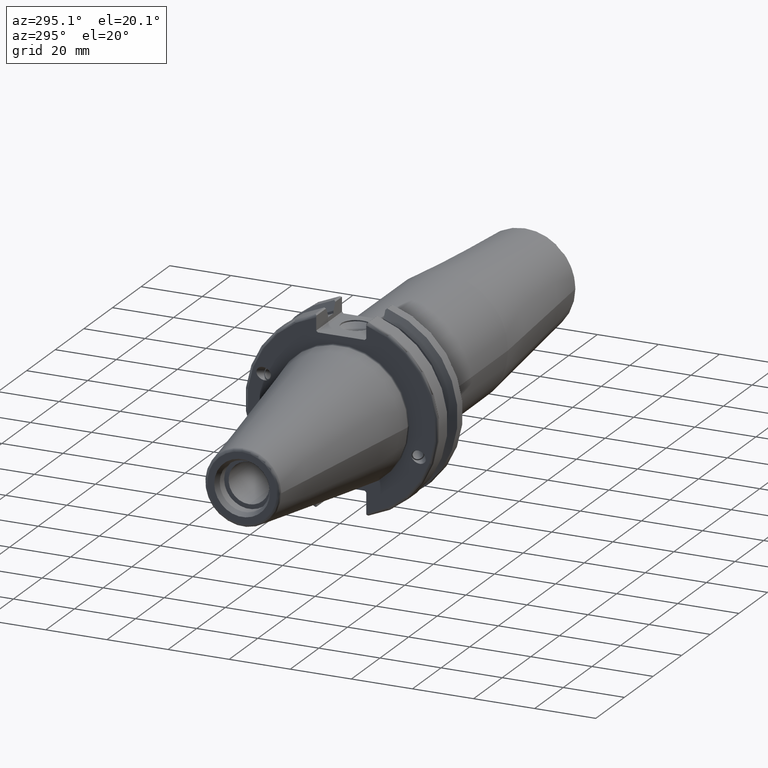
[diagram: clean part render]
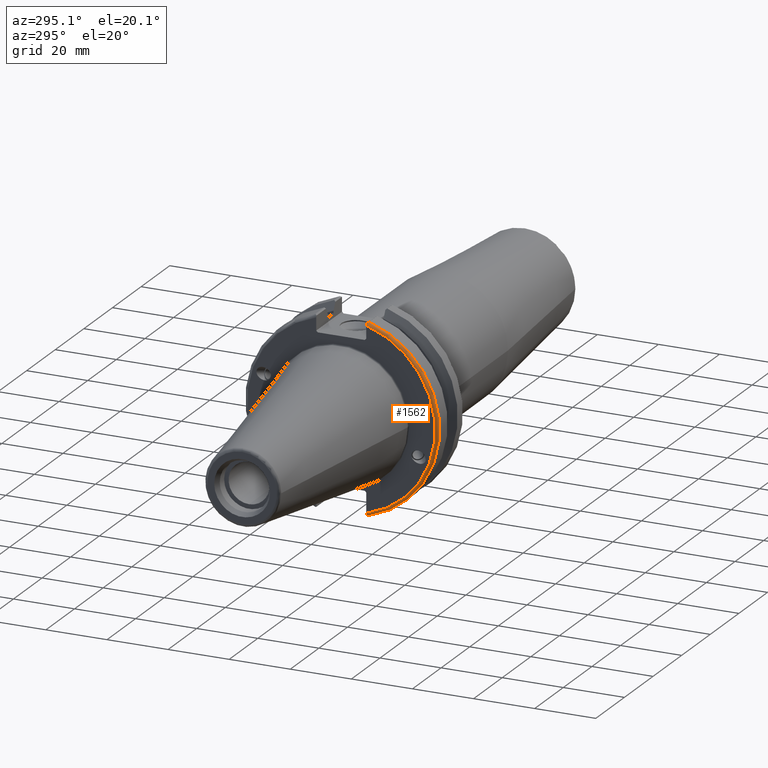
[diagram: same view with one face highlighted and labeled with its STEP entity id]
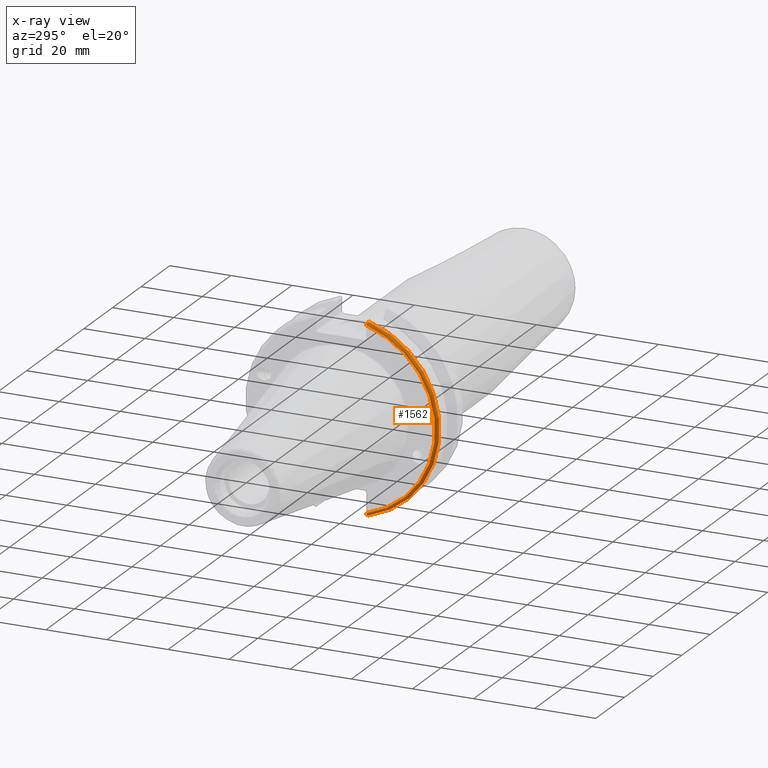
[diagram: x-ray of the same camera — body ghosted, the highlighted face saturated]
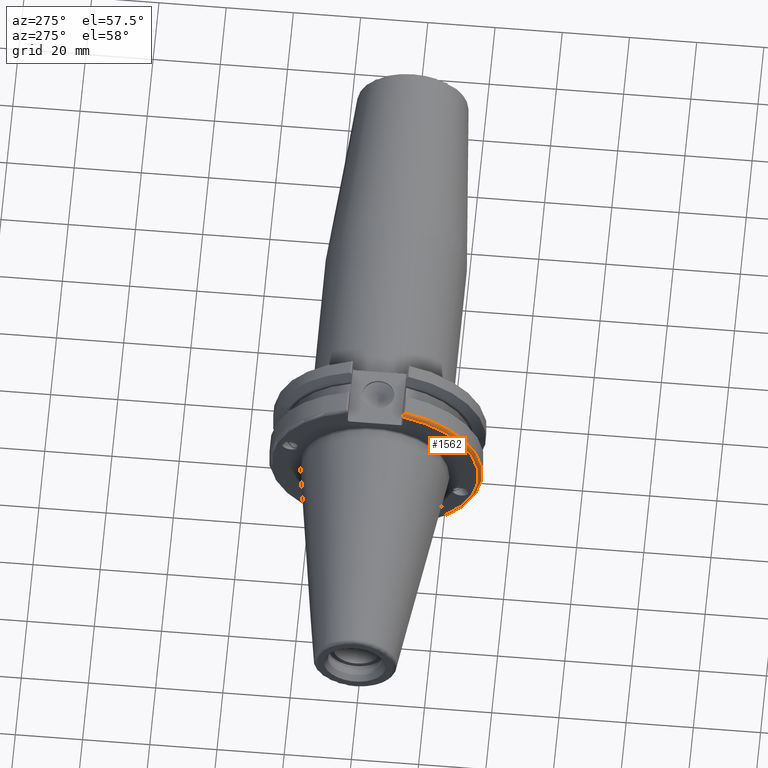
[diagram: same view with one face highlighted and labeled with its STEP entity id]
A machine part, auxiliary view. The second image highlights one B-rep face of the part: STEP entity #1562.
The next image is the same camera in x-ray: the body ghosted, the highlighted face saturated — about 0% of this face is hidden behind the body in this view.
A second angle (auxiliary view) of the same face is appended — the face is thin or edge-on in the first view.
In plain terms, the highlighted toroidal blend (fillet) surface has major radius 30.75 mm and minor (blend) radius 1 mm.
Its self-contained STEP definition (entity closure, byte-faithful):
#60=B_SPLINE_CURVE_WITH_KNOTS('',3,(#2920,#2921,#2922,#2923,#2924,#2925),
 .UNSPECIFIED.,.F.,.F.,(4,2,4),(0.0977210450333169,0.111963554372601,0.150804064902975),
 .UNSPECIFIED.);
#61=B_SPLINE_CURVE_WITH_KNOTS('',3,(#2946,#2947,#2948,#2949,#2950,#2951),
 .UNSPECIFIED.,.F.,.F.,(4,2,4),(0.452741510188268,0.491582020718643,0.505824530057928),
 .UNSPECIFIED.);
#62=B_SPLINE_CURVE_WITH_KNOTS('',3,(#2955,#2956,#2957,#2958,#2959,#2960,
#2961,#2962),.UNSPECIFIED.,.F.,.F.,(4,2,2,4),(-0.104180282751877,-0.0729784742461442,
-0.0343524753874976,0.),.UNSPECIFIED.);
#63=B_SPLINE_CURVE_WITH_KNOTS('',3,(#2965,#2966,#2967,#2968,#2969,#2970,
#2971,#2972),.UNSPECIFIED.,.F.,.F.,(4,2,2,4),(0.,0.0343524753874981,0.0729784742461435,
0.104180282751876),.UNSPECIFIED.);
#126=TOROIDAL_SURFACE('',#1746,30.75,1.);
#229=FACE_OUTER_BOUND('',#331,.T.);
#331=EDGE_LOOP('',(#1328,#1329,#1330,#1331,#1332,#1333));
#602=CIRCLE('',#1733,30.75);
#608=CIRCLE('',#1747,31.75);
#724=VERTEX_POINT('',#2780);
#725=VERTEX_POINT('',#2781);
#759=VERTEX_POINT('',#2919);
#765=VERTEX_POINT('',#2944);
#766=VERTEX_POINT('',#2954);
#767=VERTEX_POINT('',#2963);
#918=EDGE_CURVE('',#724,#725,#602,.T.);
#961=EDGE_CURVE('',#759,#724,#60,.T.);
#971=EDGE_CURVE('',#725,#765,#61,.T.);
#973=EDGE_CURVE('',#765,#766,#62,.T.);
#974=EDGE_CURVE('',#766,#767,#608,.T.);
#975=EDGE_CURVE('',#767,#759,#63,.T.);
#1328=ORIENTED_EDGE('',*,*,#973,.T.);
#1329=ORIENTED_EDGE('',*,*,#974,.T.);
#1330=ORIENTED_EDGE('',*,*,#975,.T.);
#1331=ORIENTED_EDGE('',*,*,#961,.T.);
#1332=ORIENTED_EDGE('',*,*,#918,.T.);
#1333=ORIENTED_EDGE('',*,*,#971,.T.);
#1562=ADVANCED_FACE('',(#229),#126,.T.);
#1733=AXIS2_PLACEMENT_3D('',#2782,#2064,#2065);
#1746=AXIS2_PLACEMENT_3D('',#2953,#2125,#2126);
#1747=AXIS2_PLACEMENT_3D('',#2964,#2127,#2128);
#2064=DIRECTION('center_axis',(1.,0.,0.));
#2065=DIRECTION('ref_axis',(0.,-1.,1.60812264967664E-16));
#2125=DIRECTION('center_axis',(1.,0.,0.));
#2126=DIRECTION('ref_axis',(0.,0.,-1.));
#2127=DIRECTION('center_axis',(-1.,0.,0.));
#2128=DIRECTION('ref_axis',(0.,-1.,1.60812264967664E-16));
#2780=CARTESIAN_POINT('',(0.999999999999999,-8.18999999999999,29.6392712461019));
#2781=CARTESIAN_POINT('',(0.999999999999999,-8.19,-29.6392712461019));
#2782=CARTESIAN_POINT('Origin',(0.999999999999999,0.,0.));
#2919=CARTESIAN_POINT('',(1.14412772509028,-8.19,30.1755016258903));
#2920=CARTESIAN_POINT('Ctrl Pts',(1.14412772509028,-8.19,30.1755016258903));
#2921=CARTESIAN_POINT('Ctrl Pts',(1.11818362718666,-8.19,30.131014531546));
#2922=CARTESIAN_POINT('Ctrl Pts',(1.09603565282437,-8.19,30.0852355256475));
#2923=CARTESIAN_POINT('Ctrl Pts',(1.02951443291695,-8.19,29.9212724384851));
#2924=CARTESIAN_POINT('Ctrl Pts',(0.999999999999999,-8.19,29.7687396145364));
#2925=CARTESIAN_POINT('Ctrl Pts',(0.999999999999999,-8.19,29.6392712461019));
#2944=CARTESIAN_POINT('',(1.14412772509028,-8.19,-30.1755016258903));
#2946=CARTESIAN_POINT('Ctrl Pts',(0.999999999999999,-8.19,-29.6392712461019));
#2947=CARTESIAN_POINT('Ctrl Pts',(0.999999999999999,-8.19,-29.7687396145364));
#2948=CARTESIAN_POINT('Ctrl Pts',(1.02951443291695,-8.19,-29.9212724384851));
#2949=CARTESIAN_POINT('Ctrl Pts',(1.09603565282437,-8.19,-30.0852355256475));
#2950=CARTESIAN_POINT('Ctrl Pts',(1.11818362718666,-8.19,-30.131014531546));
#2951=CARTESIAN_POINT('Ctrl Pts',(1.14412772509028,-8.19,-30.1755016258903));
#2953=CARTESIAN_POINT('Origin',(2.,0.,0.));
#2954=CARTESIAN_POINT('',(2.,-8.67204822802685,-30.5427254764662));
#2955=CARTESIAN_POINT('Ctrl Pts',(1.14412772509028,-8.19,-30.1755016258903));
#2956=CARTESIAN_POINT('Ctrl Pts',(1.19255369570113,-8.2703682833078,-30.2367261024977));
#2957=CARTESIAN_POINT('Ctrl Pts',(1.25732973376814,-8.34909446036477,-30.2966996242308));
#2958=CARTESIAN_POINT('Ctrl Pts',(1.41032758094931,-8.48862804755884,-30.4029961692546));
#2959=CARTESIAN_POINT('Ctrl Pts',(1.53155857052286,-8.56482138642532,-30.4610401774263));
#2960=CARTESIAN_POINT('Ctrl Pts',(1.75168295662254,-8.6471881193939,-30.5237870709558));
#2961=CARTESIAN_POINT('Ctrl Pts',(1.88549174870834,-8.67204822802686,-30.5427254764662));
#2962=CARTESIAN_POINT('Ctrl Pts',(2.,-8.67204822802686,-30.5427254764662));
#2963=CARTESIAN_POINT('',(2.,-8.67204822802685,30.5427254764662));
#2964=CARTESIAN_POINT('Origin',(2.,0.,0.));
#2965=CARTESIAN_POINT('Ctrl Pts',(2.,-8.67204822802686,30.5427254764662));
#2966=CARTESIAN_POINT('Ctrl Pts',(1.88549174870834,-8.67204822802686,30.5427254764662));
#2967=CARTESIAN_POINT('Ctrl Pts',(1.75168295662254,-8.64718811939389,30.5237870709558));
#2968=CARTESIAN_POINT('Ctrl Pts',(1.53155857052286,-8.56482138642532,30.4610401774263));
#2969=CARTESIAN_POINT('Ctrl Pts',(1.4103275809493,-8.48862804755884,30.4029961692546));
#2970=CARTESIAN_POINT('Ctrl Pts',(1.25732973376814,-8.34909446036478,30.2966996242308));
#2971=CARTESIAN_POINT('Ctrl Pts',(1.19255369570113,-8.2703682833078,30.2367261024977));
#2972=CARTESIAN_POINT('Ctrl Pts',(1.14412772509028,-8.19,30.1755016258903));